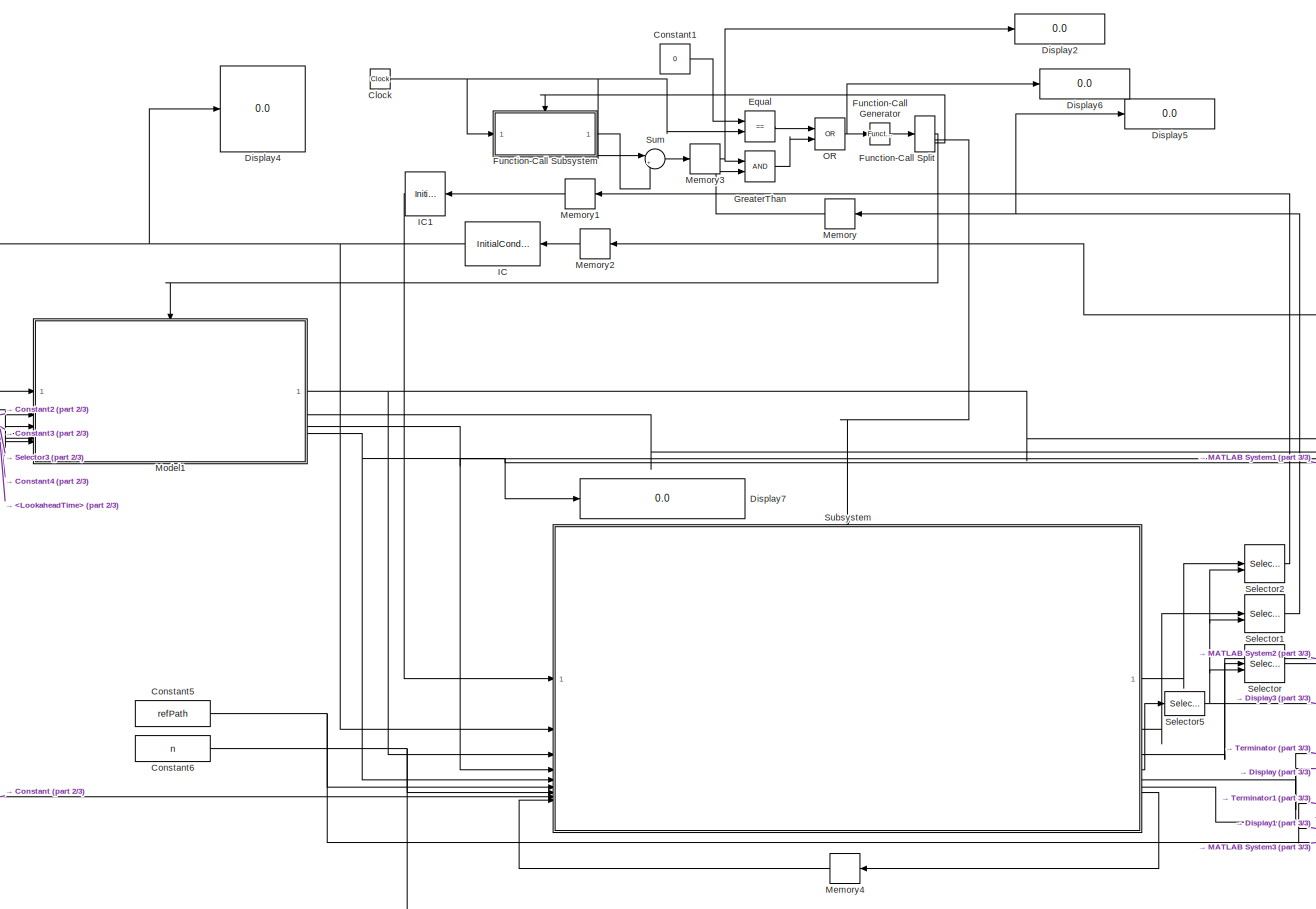
[diagram: root canvas - part 1/3, center side, full height]
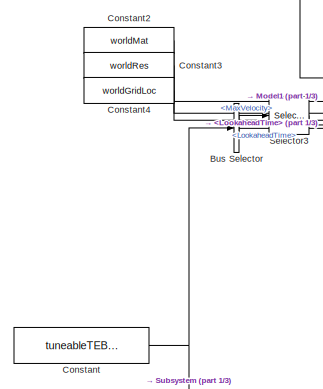
[diagram: root canvas - part 2/3, middle left region]
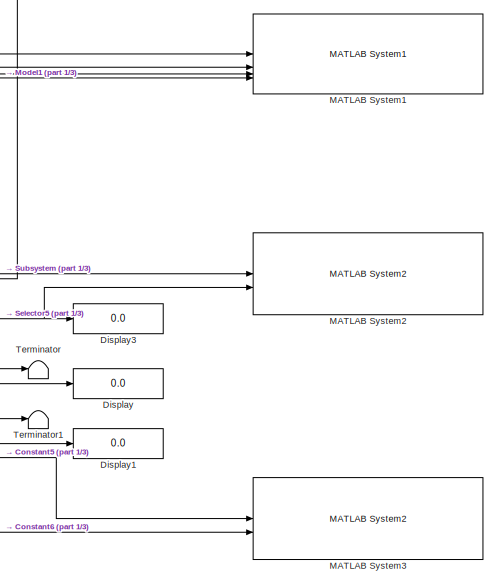
[diagram: root canvas - part 3/3, bottom right region]
MODEL slx_3a027ad590df
KIND model
CONFIG AbsTol = auto
CONFIG EnableMultiTasking = off
CONFIG FixedStep = auto
CONFIG InitFcn = % Make sure server is running\nsvrMdlName = 'localPlanServer';\nload_system(svrMdlName);\nset_param(svrMdlName,'SimulationCommand','Start');\npause(1);
CONFIG MaxStep = auto
CONFIG MinStep = auto
CONFIG RelTol = 1e-3
CONFIG SampleTimeConstraint = Unconstrained
CONFIG SolverName = FixedStepDiscrete
CONFIG StartTime = 0.0
CONFIG StopFcn = % Make sure server is running\nsvrMdlName = 'localPlanServer';\nload_system(svrMdlName);\nset_param(svrMdlName,'SimulationCommand','Stop');
CONFIG StopTime = 30
BLOCK [BusSelector] Bus Selector
  OutputSignals = MaxVelocity,LookaheadTime
BLOCK [Clock] Clock
BLOCK [Constant] Constant
  OutDataTypeStr = Bus: teb_bus
  Value = tuneableTEBParamsCpp
BLOCK [Constant] Constant1
  Value = 0
BLOCK [Constant] Constant2
  Value = worldMat
  VectorParams1D = off
BLOCK [Constant] Constant3
  Value = worldRes
BLOCK [Constant] Constant4
  Value = worldGridLoc
  VectorParams1D = off
BLOCK [Constant] Constant5
  Value = refPath
  VectorParams1D = off
BLOCK [Constant] Constant6
  Value = n
BLOCK [Display] Display
  Decimation = 1
BLOCK [Display] Display1
  Decimation = 1
BLOCK [Display] Display2
  Decimation = 1
BLOCK [Display] Display3
  Decimation = 1
BLOCK [Display] Display4
  Decimation = 1
BLOCK [Display] Display5
  Decimation = 1
BLOCK [Display] Display6
  Decimation = 1
BLOCK [Display] Display7
  Decimation = 1
BLOCK [RelationalOperator] Equal
  InputSameDT = off
  Operator = ==
  OutDataTypeStr = boolean
  RndMeth = Simplest
BLOCK [Reference] Function-Call Generator  REF=simulink/Ports &
Subsystems/Function-Call
Generator
  SourceBlock = simulink/Ports &\nSubsystems/Function-Call\nGenerator
  SourceType = Function-Call Generator
BLOCK [FunctionCallSplit] Function-Call Split
  IconShape = distinctive
  NumOutputPorts = 3
  OutputPortLayout = default
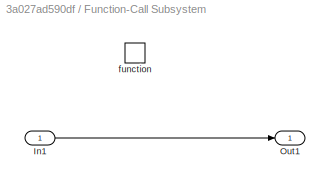
BLOCK [SubSystem] Function-Call Subsystem
  TreatAsAtomicUnit = on
BLOCK [Inport] Function-Call Subsystem/In1
BLOCK [Outport] Function-Call Subsystem/Out1
BLOCK [TriggerPort] Function-Call Subsystem/function
  StatesWhenEnabling = held
  TriggerType = function-call
  VariantControl = (inherit)
BLOCK [RelationalOperator] GreaterThan
  InputSameDT = off
  OutDataTypeStr = boolean
  RndMeth = Simplest
BLOCK [InitialCondition] IC
  NameLocation = top
  Value = refPath(1,:) + [10 10 0]
BLOCK [InitialCondition] IC1
  NameLocation = top
  Value = [0 0]
BLOCK [Reference] MATLAB System1  REF=roshelperlib/MATLAB System1  (lib defined in slx_3328ea0e13a5)
  SourceBlock = roshelperlib/MATLAB System1
  SourceType = exampleHelperMapVisualizerSys
BLOCK [Reference] MATLAB System2  REF=roshelperlib/MATLAB System2  (lib defined in slx_3328ea0e13a5)
  SourceBlock = roshelperlib/MATLAB System2
  SourceType = exampleHelperPathVisualizerSys
BLOCK [Reference] MATLAB System3  REF=roshelperlib/MATLAB System2  (lib defined in slx_3328ea0e13a5)
  SourceBlock = roshelperlib/MATLAB System2
  SourceType = exampleHelperPathVisualizerSys
BLOCK [Memory] Memory
  NameLocation = top
BLOCK [Memory] Memory1
  NameLocation = top
BLOCK [Memory] Memory2
  NameLocation = top
BLOCK [Memory] Memory3
BLOCK [Memory] Memory4
  NameLocation = top
BLOCK [ModelReference] Model1
  ModelNameDialog = extractLocalMap.slx
  ModelReferenceVersion = 1.0
  TriggerPortName = function
  TriggerPortStatesWhenEnabling = held
  TriggerPortTriggerType = function-call
BLOCK [Logic] OR
  AllPortsSameDT = off
  IconShape = distinctive
  Operator = OR
  OutDataTypeStr = boolean
BLOCK [Selector] Selector
  IndexOptions = Index vector (port),Select all
  Indices = [1 3],1
  InputPortWidth = 3
  NumberOfDimensions = 2
  OutputSizes = 1,1
BLOCK [Selector] Selector1
  IndexOptions = Index vector (port),Index vector (dialog)
  Indices = [1 3],1
  InputPortWidth = 3
  NumberOfDimensions = 2
  OutputSizes = 1,1
BLOCK [Selector] Selector2
  IndexOptions = Index vector (port),Index vector (dialog)
  Indices = [1 3],[1 2]
  InputPortWidth = 3
  NumberOfDimensions = 2
  OutputSizes = 1,1
BLOCK [Selector] Selector3
  IndexOptions = Index vector (dialog)
  Indices = 1
  InputPortWidth = 2
  OutputSizes = 1
BLOCK [Selector] Selector5
  IndexOptions = Index vector (dialog)
  Indices = 1
  InputPortWidth = 2
  OutputSizes = 1
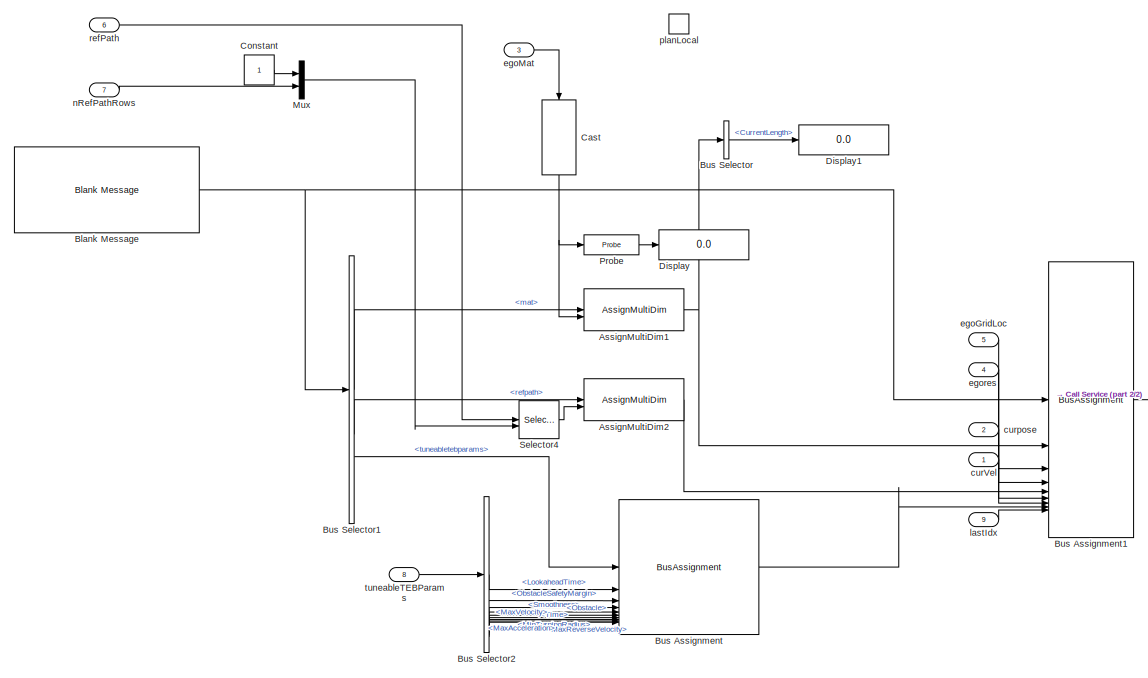
[diagram: Subsystem - part 1/2, left side, full height]
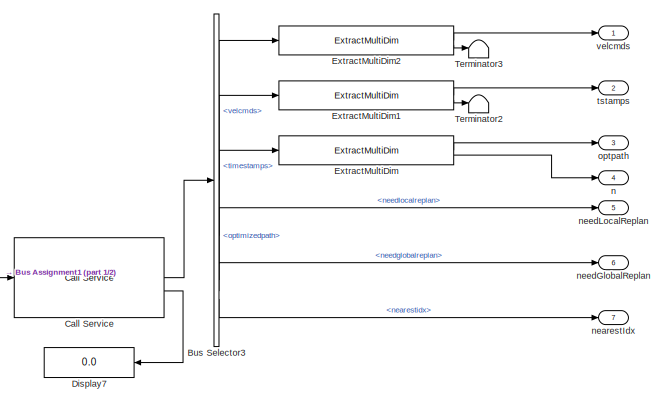
[diagram: Subsystem - part 2/2, middle right region]
BLOCK [SubSystem] Subsystem
BLOCK [Reference] Subsystem/AssignMultiDim1  REF=roshelperlib/AssignMultiDim  (lib defined in slx_3328ea0e13a5)
  SourceBlock = roshelperlib/AssignMultiDim
  SourceType = SubSystem
BLOCK [Reference] Subsystem/AssignMultiDim2  REF=roshelperlib/AssignMultiDim  (lib defined in slx_3328ea0e13a5)
  SourceBlock = roshelperlib/AssignMultiDim
  SourceType = SubSystem
BLOCK [Reference] Subsystem/Blank Message  REF=ros2lib/Blank Message  (lib defined in slx_3c1549211f48)
  SourceBlock = ros2lib/Blank Message
  SourceType = ROS2 Blank Message
BLOCK [BusAssignment] Subsystem/Bus Assignment
  AssignedSignals = lookaheadtime,obstaclesafetymargin,costweights.time,costweights.smoothness,costweights.obstacle,minturningradius,maxvelocity,maxacceleration,maxreversevelocity
BLOCK [BusAssignment] Subsystem/Bus Assignment1
  AssignedSignals = mat,gridloc,resolution,refpath,curpose,curvel,tuneabletebparams,lastidx
BLOCK [BusSelector] Subsystem/Bus Selector
  OutputSignals = data_SL_Info.CurrentLength
BLOCK [BusSelector] Subsystem/Bus Selector1
  OutputSignals = mat,refpath,tuneabletebparams
BLOCK [BusSelector] Subsystem/Bus Selector2
  OutputSignals = LookaheadTime,ObstacleSafetyMargin,CostWeights_T.Time,CostWeights_T.Smoothness,CostWeights_T.Obstacle,MinTurningRadius,MaxVelocity,MaxAcceleration,MaxReverseVelocity
BLOCK [BusSelector] Subsystem/Bus Selector3
  OutputSignals = velcmds,timestamps,optimizedpath,needlocalreplan,needglobalreplan,nearestidx
BLOCK [Reference] Subsystem/Call Service  REF=ros2lib/Call Service  (lib defined in slx_3c1549211f48)
  SourceBlock = ros2lib/Call Service
  SourceType = ROS2 Call Service
BLOCK [DataTypeConversion] Subsystem/Cast
  NameLocation = left
  OutDataTypeStr = int8
  RndMeth = Floor
  SaturateOnIntegerOverflow = off
BLOCK [Constant] Subsystem/Constant
BLOCK [Display] Subsystem/Display
  Decimation = 1
BLOCK [Display] Subsystem/Display1
  Decimation = 1
BLOCK [Display] Subsystem/Display7
  Decimation = 1
  NameLocation = top
BLOCK [Reference] Subsystem/ExtractMultiDim  REF=roshelperlib/ExtractMultiDim  (lib defined in slx_3328ea0e13a5)
  SourceBlock = roshelperlib/ExtractMultiDim
BLOCK [Reference] Subsystem/ExtractMultiDim1  REF=roshelperlib/ExtractMultiDim  (lib defined in slx_3328ea0e13a5)
  SourceBlock = roshelperlib/ExtractMultiDim
BLOCK [Reference] Subsystem/ExtractMultiDim2  REF=roshelperlib/ExtractMultiDim  (lib defined in slx_3328ea0e13a5)
  SourceBlock = roshelperlib/ExtractMultiDim
BLOCK [Mux] Subsystem/Mux
  DisplayOption = bar
  Inputs = 2
BLOCK [Probe] Subsystem/Probe
  ProbeComplexSignal = off
  ProbeSampleTime = off
  ProbeSignalDimensions = on
  ProbeWidth = off
BLOCK [Selector] Subsystem/Selector4
  IndexMode = Zero-based
  IndexOptions = Starting and ending indices (port),Select all
  Indices = [1 3],1
  InputPortWidth = 3
  NumberOfDimensions = 2
  OutputSizes = 1,1
BLOCK [Terminator] Subsystem/Terminator2
BLOCK [Terminator] Subsystem/Terminator3
BLOCK [Inport] Subsystem/curVel
  NameLocation = top
BLOCK [Inport] Subsystem/curpose
  NameLocation = top
  Port = 2
BLOCK [Inport] Subsystem/egoGridLoc
  Port = 5
BLOCK [Inport] Subsystem/egoMat
  Port = 3
BLOCK [Inport] Subsystem/egores
  Port = 4
BLOCK [Inport] Subsystem/lastIdx
  Port = 9
BLOCK [Outport] Subsystem/n
  Port = 4
BLOCK [Inport] Subsystem/nRefPathRows
  Port = 7
BLOCK [Outport] Subsystem/nearestIdx
  Port = 7
BLOCK [Outport] Subsystem/needGlobalReplan
  Port = 6
BLOCK [Outport] Subsystem/needLocalReplan
  Port = 5
BLOCK [Outport] Subsystem/optpath
  Port = 3
BLOCK [TriggerPort] Subsystem/planLocal
  StatesWhenEnabling = held
  TriggerType = function-call
  VariantControl = (inherit)
BLOCK [Inport] Subsystem/refPath
  Port = 6
BLOCK [Outport] Subsystem/tstamps
  Port = 2
BLOCK [Inport] Subsystem/tuneableTEBParams
  Port = 8
BLOCK [Outport] Subsystem/velcmds
BLOCK [Sum] Sum
  Inputs = |+-
BLOCK [Terminator] Terminator
BLOCK [Terminator] Terminator1
LINE Bus Selector:1 -> Selector3:1
LINE Bus Selector:2 -> Model1:6
NET Clock:1 -> Equal:2, Function-Call Subsystem:1, Sum:1
LINE Constant1:1 -> Equal:1
LINE Constant2:1 -> Model1:2
LINE Constant3:1 -> Model1:3
LINE Constant4:1 -> Model1:4
NET Constant5:1 -> MATLAB System3:1, Subsystem:6
NET Constant6:1 -> MATLAB System3:2, Subsystem:7
NET Constant:1 -> Bus Selector:1, Subsystem:8
LINE Equal:1 -> OR:1
LINE Function-Call Generator:1 -> Function-Call Split:1
LINE Function-Call Split:1 -> Model1:trigger
LINE Function-Call Split:2 -> Subsystem:trigger
LINE Function-Call Split:3 -> Function-Call Subsystem:trigger
LINE Function-Call Subsystem/In1:1 -> Function-Call Subsystem/Out1:1
LINE Function-Call Subsystem:1 -> Sum:2
LINE GreaterThan:1 -> OR:2
LINE IC1:1 -> Subsystem:1
NET IC:1 -> Display4:1, Model1:1, Subsystem:2
LINE Memory1:1 -> IC1:1
LINE Memory2:1 -> IC:1
NET Memory3:1 -> Display2:1, GreaterThan:1
LINE Memory4:1 -> Subsystem:9
LINE Memory:1 -> GreaterThan:2
NET Model1:1 -> MATLAB System1:1, Subsystem:3
LINE Model1:2 -> MATLAB System1:2
NET Model1:3 -> MATLAB System1:3, Subsystem:4
NET Model1:4 -> Display7:1, MATLAB System1:4, Subsystem:5
NET OR:1 -> Display6:1, Function-Call Generator:1
NET Selector1:1 -> Display5:1, Memory:1
LINE Selector2:1 -> Memory1:1
LINE Selector3:1 -> Model1:5
NET Selector5:1 -> Display3:1, MATLAB System2:2, Selector1:2, Selector2:2, Selector:2
LINE Selector:1 -> Memory2:1
NET Subsystem/AssignMultiDim1:1 -> Subsystem/Bus Assignment1:2, Subsystem/Bus Selector:1
LINE Subsystem/AssignMultiDim2:1 -> Subsystem/Bus Assignment1:5
NET Subsystem/Blank Message:1 -> Subsystem/Bus Assignment1:1, Subsystem/Bus Selector1:1
LINE Subsystem/Bus Assignment1:1 -> Subsystem/Call Service:1
LINE Subsystem/Bus Assignment:1 -> Subsystem/Bus Assignment1:8
LINE Subsystem/Bus Selector1:1 -> Subsystem/AssignMultiDim1:1
LINE Subsystem/Bus Selector1:2 -> Subsystem/AssignMultiDim2:1
LINE Subsystem/Bus Selector1:3 -> Subsystem/Bus Assignment:1
LINE Subsystem/Bus Selector2:1 -> Subsystem/Bus Assignment:2
LINE Subsystem/Bus Selector2:2 -> Subsystem/Bus Assignment:3
LINE Subsystem/Bus Selector2:3 -> Subsystem/Bus Assignment:4
LINE Subsystem/Bus Selector2:4 -> Subsystem/Bus Assignment:5
LINE Subsystem/Bus Selector2:5 -> Subsystem/Bus Assignment:6
LINE Subsystem/Bus Selector2:6 -> Subsystem/Bus Assignment:7
LINE Subsystem/Bus Selector2:7 -> Subsystem/Bus Assignment:8
LINE Subsystem/Bus Selector2:8 -> Subsystem/Bus Assignment:9
LINE Subsystem/Bus Selector2:9 -> Subsystem/Bus Assignment:10
LINE Subsystem/Bus Selector3:1 -> Subsystem/ExtractMultiDim2:1
LINE Subsystem/Bus Selector3:2 -> Subsystem/ExtractMultiDim1:1
LINE Subsystem/Bus Selector3:3 -> Subsystem/ExtractMultiDim:1
LINE Subsystem/Bus Selector3:4 -> Subsystem/needLocalReplan:1
LINE Subsystem/Bus Selector3:5 -> Subsystem/needGlobalReplan:1
LINE Subsystem/Bus Selector3:6 -> Subsystem/nearestIdx:1
LINE Subsystem/Bus Selector:1 -> Subsystem/Display1:1
LINE Subsystem/Call Service:1 -> Subsystem/Bus Selector3:1
LINE Subsystem/Call Service:2 -> Subsystem/Display7:1
NET Subsystem/Cast:1 -> Subsystem/AssignMultiDim1:2, Subsystem/Probe:1
LINE Subsystem/Constant:1 -> Subsystem/Mux:1
LINE Subsystem/ExtractMultiDim1:1 -> Subsystem/tstamps:1
LINE Subsystem/ExtractMultiDim1:2 -> Subsystem/Terminator2:1
LINE Subsystem/ExtractMultiDim2:1 -> Subsystem/velcmds:1
LINE Subsystem/ExtractMultiDim2:2 -> Subsystem/Terminator3:1
LINE Subsystem/ExtractMultiDim:1 -> Subsystem/optpath:1
LINE Subsystem/ExtractMultiDim:2 -> Subsystem/n:1
LINE Subsystem/Mux:1 -> Subsystem/Selector4:2
LINE Subsystem/Probe:1 -> Subsystem/Display:1
LINE Subsystem/Selector4:1 -> Subsystem/AssignMultiDim2:2
LINE Subsystem/curVel:1 -> Subsystem/Bus Assignment1:7
LINE Subsystem/curpose:1 -> Subsystem/Bus Assignment1:6
LINE Subsystem/egoGridLoc:1 -> Subsystem/Bus Assignment1:3
LINE Subsystem/egoMat:1 -> Subsystem/Cast:1
LINE Subsystem/egores:1 -> Subsystem/Bus Assignment1:4
LINE Subsystem/lastIdx:1 -> Subsystem/Bus Assignment1:9
LINE Subsystem/nRefPathRows:1 -> Subsystem/Mux:2
LINE Subsystem/refPath:1 -> Subsystem/Selector4:1
LINE Subsystem/tuneableTEBParams:1 -> Subsystem/Bus Selector2:1
LINE Subsystem:1 -> Selector2:1
LINE Subsystem:2 -> Selector1:1
NET Subsystem:3 -> MATLAB System2:1, Selector:1
LINE Subsystem:4 -> Selector5:1
NET Subsystem:5 -> Display:1, Terminator:1
NET Subsystem:6 -> Display1:1, Terminator1:1
LINE Subsystem:7 -> Memory4:1
LINE Sum:1 -> Memory3:1
note: NET lines group one-source signal fan-out (src -> all destinations, sorted); 1:1 wires keep LINE
